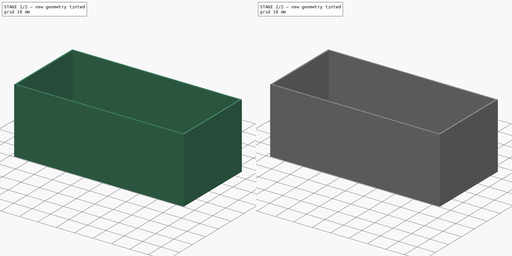
[diagram: build sequence overview — one tinted view per stage of 2, left to right]
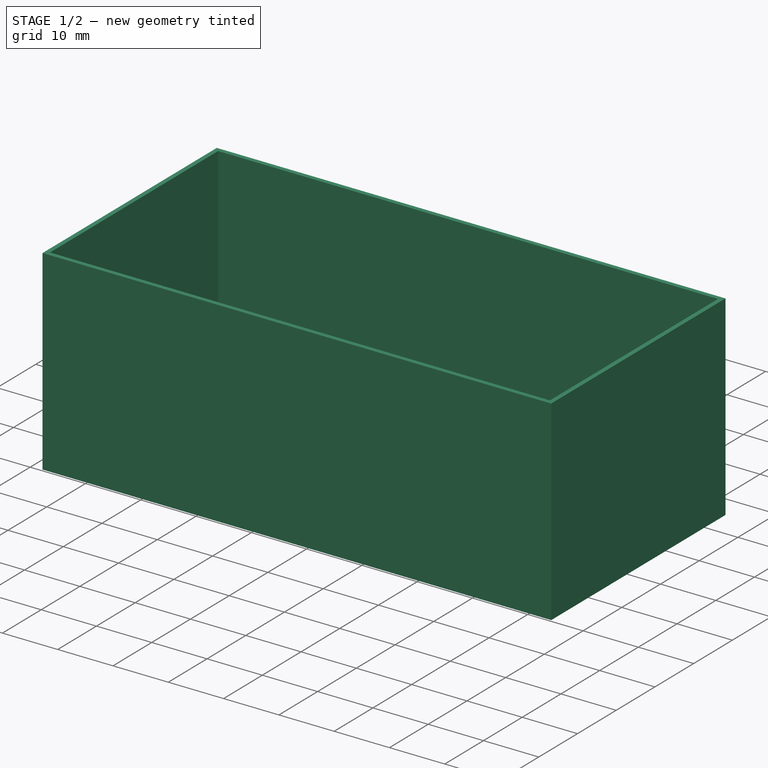
[diagram: stage 1 of 2 — iso view after this stage's code; geometry added in this stage tinted green]
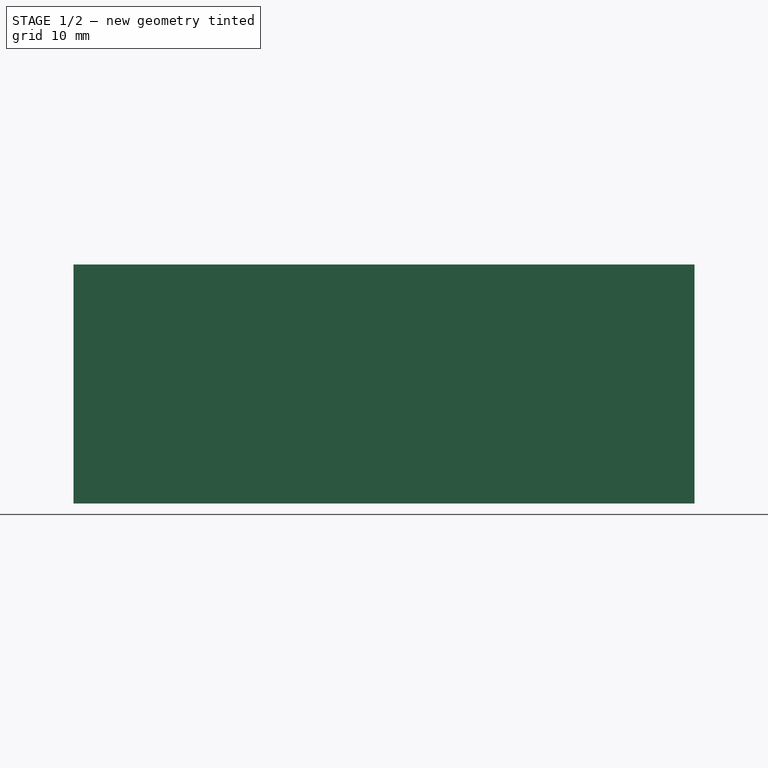
[diagram: stage 1 of 2 — front view after this stage's code; geometry added in this stage tinted green]
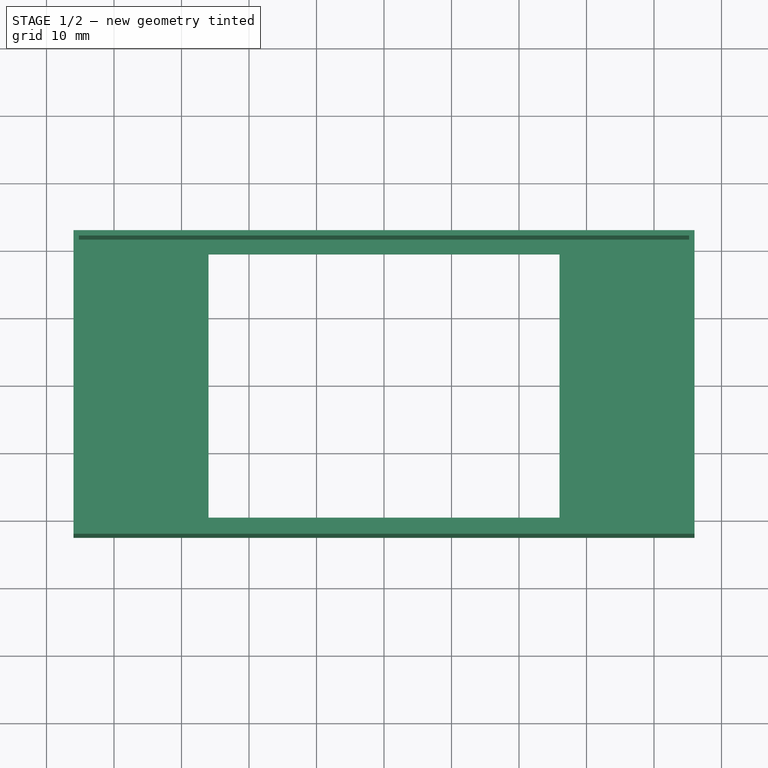
[diagram: stage 1 of 2 — top view after this stage's code; geometry added in this stage tinted green]
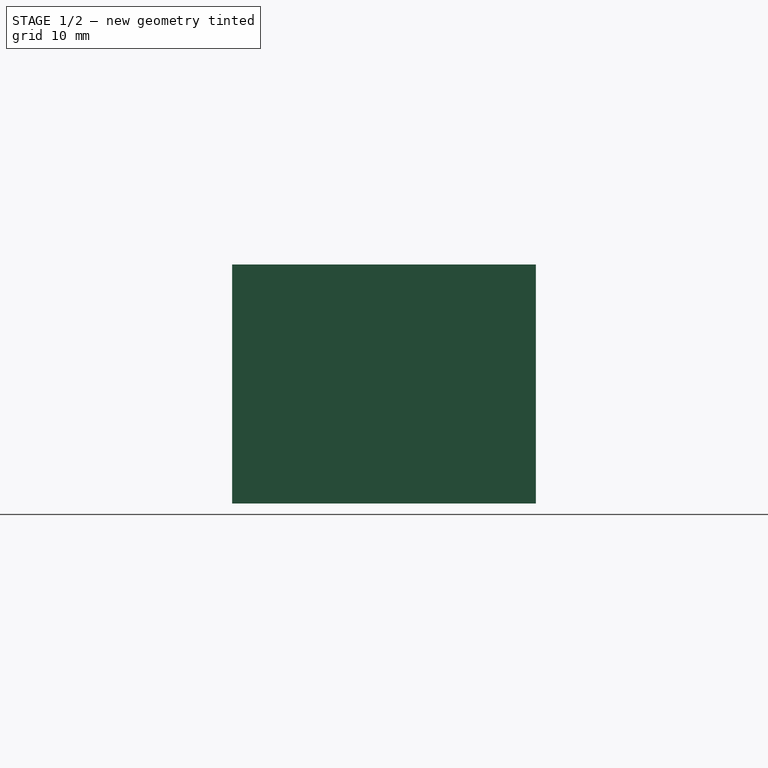
[diagram: stage 1 of 2 — right view after this stage's code; geometry added in this stage tinted green]
FCSTD DOCUMENT  (FreeCAD 0.21R33668 +26 (Git))
Label: Hauptgehäuse
License: All rights reserved
LicenseURL: http://en.wikipedia.org/wiki/All_rights_reserved
objects: Sketcher::SketchObject×4, PartDesign::Pad×4, PartDesign::Body×1
note: 13 computed .brp shape members not serialized (recipe doc carries the construction recipe); baked Part::Feature solids carry a one-line shape summary decoded from their .brp

FEATURE [Sketcher::SketchObject] Sketch
  FullyConstrained = true
  MapMode = 5
  Support = -> [XY_Plane]
  sketch-geometry (8):
    g0: LineSegment StartX=-26 StartY=-19.5 StartZ=0 EndX=26 EndY=-19.5 EndZ=0
    g1: LineSegment StartX=26 StartY=-19.5 StartZ=0 EndX=26 EndY=19.5 EndZ=0
    g2: LineSegment StartX=26 StartY=19.5 StartZ=0 EndX=-26 EndY=19.5 EndZ=0
    g3: LineSegment StartX=-26 StartY=19.5 StartZ=0 EndX=-26 EndY=-19.5 EndZ=0
    g4: LineSegment StartX=-46 StartY=-22.5 StartZ=0 EndX=46 EndY=-22.5 EndZ=0
    g5: LineSegment StartX=46 StartY=-22.5 StartZ=0 EndX=46 EndY=22.5 EndZ=0
    g6: LineSegment StartX=46 StartY=22.5 StartZ=0 EndX=-46 EndY=22.5 EndZ=0
    g7: LineSegment StartX=-46 StartY=22.5 StartZ=0 EndX=-46 EndY=-22.5 EndZ=0
  constraints (22):
    c: Coincident(g0,g1)
    c: Coincident(g1,g2)
    c: Coincident(g2,g3)
    c: Coincident(g3,g0)
    c: Horizontal(g0)
    c: Horizontal(g2)
    c: Vertical(g1)
    c: Vertical(g3)
    c: Symmetric(g0,g1,g-1)
    c: DistanceX(g2,g2) = 52
    c: DistanceY(g1,g1) = 39
    c: Coincident(g4,g5)
    c: Coincident(g5,g6)
    c: Coincident(g6,g7)
    c: Coincident(g7,g4)
    c: Horizontal(g4)
    c: Horizontal(g6)
    c: Vertical(g5)
    c: Vertical(g7)
    c: Symmetric(g4,g5,g-1)
    c: DistanceX(g6,g6) = 92
    c: DistanceY(g7,g7) = 45
FEATURE [Sketcher::SketchObject] Sketch001
  FullyConstrained = true
  MapMode = 5
  Support = -> [XY_Plane]
  sketch-geometry (8):
    g0: Circle CenterX=30.5 CenterY=18.25 CenterZ=0 NormalX=0 NormalY=0 NormalZ=1 AngleXU=0 Radius=3
    g1: Circle CenterX=30.5 CenterY=-18.25 CenterZ=0 NormalX=0 NormalY=0 NormalZ=1 AngleXU=0 Radius=3
    g2: Circle CenterX=-36.5 CenterY=18.25 CenterZ=0 NormalX=0 NormalY=0 NormalZ=1 AngleXU=0 Radius=3
    g3: Circle CenterX=-36.5 CenterY=-18.25 CenterZ=0 NormalX=0 NormalY=0 NormalZ=1 AngleXU=0 Radius=3
    g4: Circle CenterX=30.5 CenterY=18.25 CenterZ=0 NormalX=0 NormalY=0 NormalZ=1 AngleXU=0 Radius=1
    g5: Circle CenterX=30.5 CenterY=-18.25 CenterZ=0 NormalX=0 NormalY=0 NormalZ=1 AngleXU=0 Radius=1
    g6: Circle CenterX=-36.5 CenterY=18.25 CenterZ=0 NormalX=0 NormalY=0 NormalZ=1 AngleXU=0 Radius=1
    g7: Circle CenterX=-36.5 CenterY=-18.25 CenterZ=0 NormalX=0 NormalY=0 NormalZ=1 AngleXU=0 Radius=1
  constraints (18):
    c: DistanceX(g-1,g0) = 30.5
    c: Diameter(g0) = 6
    c: Equal(g0,g1) = 6
    c: Symmetric(g0,g1,g-1)
    c: DistanceY(g1,g0) = 36.5
    c: Equal(g0,g2) = 6
    c: Equal(g2,g3) = 6
    c: DistanceY(g3,g2) = 36.5
    c: DistanceX(g2,g0) = 67
    c: Symmetric(g3,g2,g-1)
    c: Coincident(g4,g0)
    c: Diameter(g4) = 2
    c: Equal(g4,g5) = 2
    c: Equal(g4,g6) = 2
    c: Equal(g6,g7) = 2
    c: Coincident(g5,g1)
    c: Coincident(g7,g3)
    c: Coincident(g6,g2)
FEATURE [PartDesign::Pad] Pad
  Direction = (0,0,1)
  Length = 0.4
  Length2 = 10
  Profile = -> Sketch
  ReferenceAxis = -> Sketch [N_Axis]
  Reversed = true
  Type = 0
FEATURE [Sketcher::SketchObject] Sketch003
  FullyConstrained = true
  MapMode = 5
  Support = -> [XY_Plane]
  sketch-geometry (8):
    g0: LineSegment StartX=-46 StartY=-22.5 StartZ=0 EndX=46 EndY=-22.5 EndZ=0
    g1: LineSegment StartX=46 StartY=-22.5 StartZ=0 EndX=46 EndY=22.5 EndZ=0
    g2: LineSegment StartX=46 StartY=22.5 StartZ=0 EndX=-46 EndY=22.5 EndZ=0
    g3: LineSegment StartX=-46 StartY=22.5 StartZ=0 EndX=-46 EndY=-22.5 EndZ=0
    g4: LineSegment StartX=-45.2 StartY=-21.7 StartZ=0 EndX=45.2 EndY=-21.7 EndZ=0
    g5: LineSegment StartX=45.2 StartY=-21.7 StartZ=0 EndX=45.2 EndY=21.7 EndZ=0
    g6: LineSegment StartX=45.2 StartY=21.7 StartZ=0 EndX=-45.2 EndY=21.7 EndZ=0
    g7: LineSegment StartX=-45.2 StartY=21.7 StartZ=0 EndX=-45.2 EndY=-21.7 EndZ=0
  constraints (22):
    c: Coincident(g0,g1)
    c: Coincident(g1,g2)
    c: Coincident(g2,g3)
    c: Coincident(g3,g0)
    c: Horizontal(g0)
    c: Horizontal(g2)
    c: Vertical(g1)
    c: Vertical(g3)
    c: DistanceX(g2,g2) = 92
    c: DistanceY(g1,g1) = 45
    c: Symmetric(g0,g1,g-1)
    c: Coincident(g4,g5)
    c: Coincident(g5,g6)
    c: Coincident(g6,g7)
    c: Coincident(g7,g4)
    c: Horizontal(g4)
    c: Horizontal(g6)
    c: Vertical(g5)
    c: Vertical(g7)
    c: Symmetric(g5,g4,g-1)
    c: DistanceX(g5,g1) = 0.8
    c: DistanceY(g5,g1) = 0.8
FEATURE [PartDesign::Pad] Pad001
  BaseFeature = -> Pad
  Direction = (0,0,1)
  Length = 35
  Length2 = 10
  Profile = -> Sketch003
  ReferenceAxis = -> Sketch003 [N_Axis]
  Type = 0
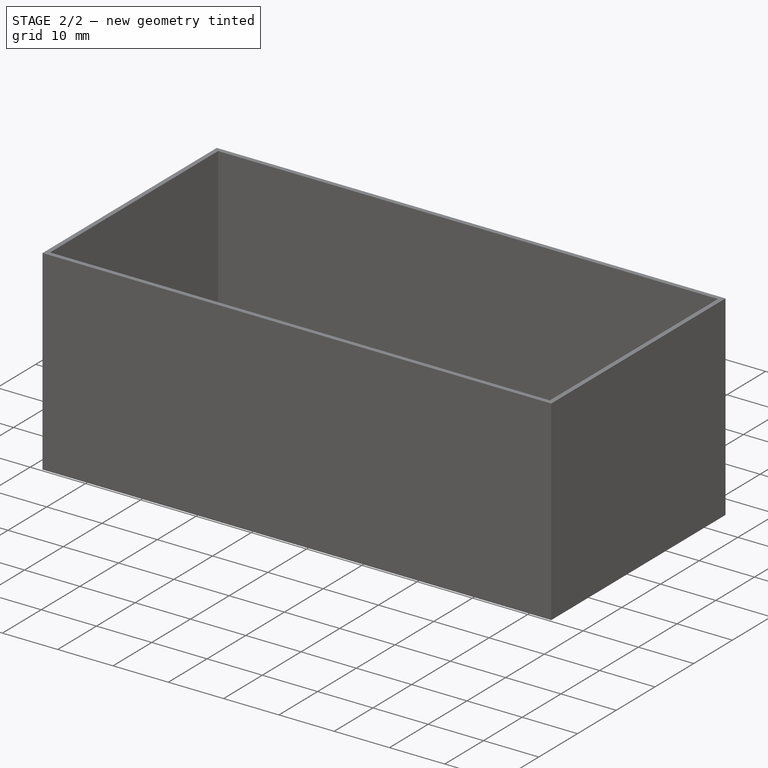
[diagram: stage 2 of 2 — iso view after this stage's code; geometry added in this stage tinted green]
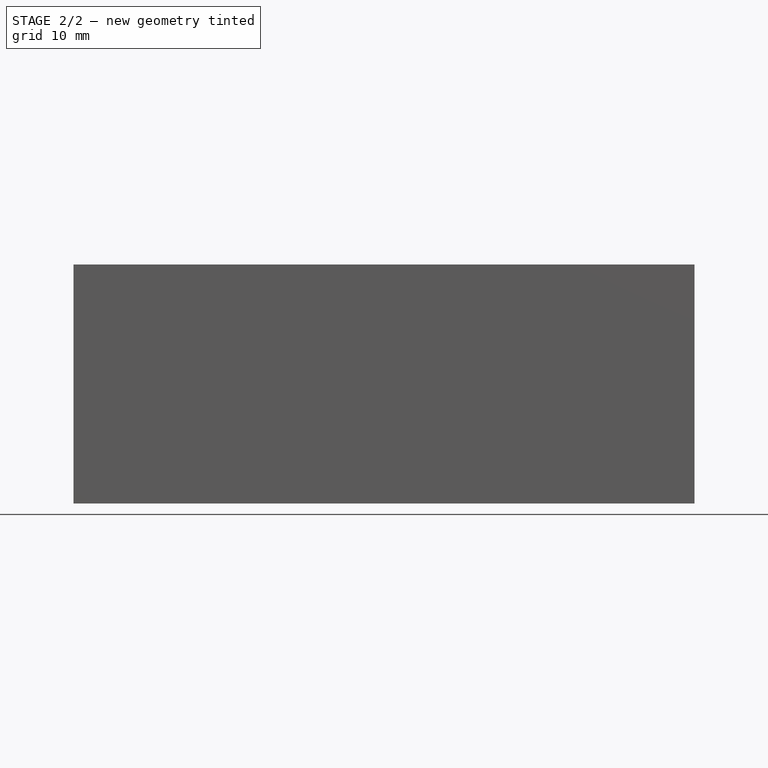
[diagram: stage 2 of 2 — front view after this stage's code; geometry added in this stage tinted green]
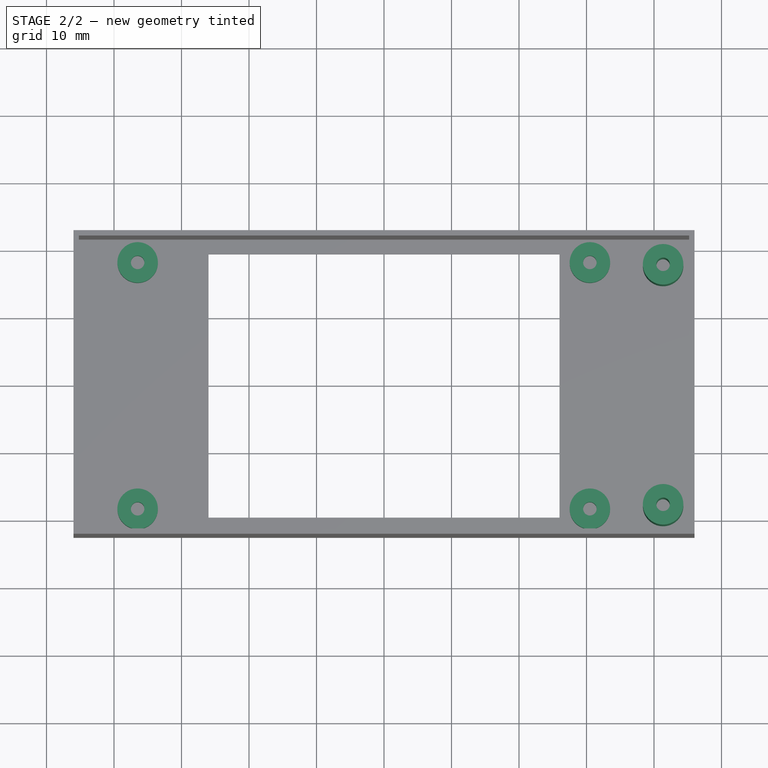
[diagram: stage 2 of 2 — top view after this stage's code; geometry added in this stage tinted green]
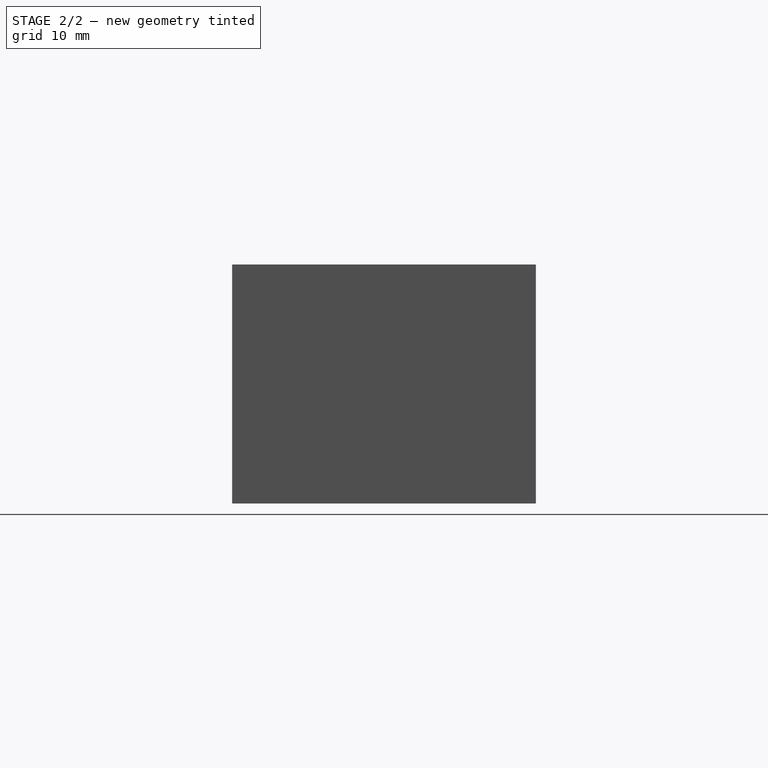
[diagram: stage 2 of 2 — right view after this stage's code; geometry added in this stage tinted green]
FEATURE [PartDesign::Pad] Pad002
  BaseFeature = -> Pad001
  Direction = (0,0,1)
  Length = 4
  Length2 = 10
  Profile = -> Sketch001
  ReferenceAxis = -> Sketch001 [N_Axis]
  Type = 0
FEATURE [Sketcher::SketchObject] Sketch004
  FullyConstrained = false
  MapMode = 5
  Support = -> [XY_Plane]
  sketch-geometry (4):
    g0: Circle CenterX=41.3488 CenterY=17.78 CenterZ=0 NormalX=0 NormalY=0 NormalZ=1 AngleXU=0 Radius=1
    g1: Circle CenterX=41.3488 CenterY=17.78 CenterZ=0 NormalX=0 NormalY=0 NormalZ=1 AngleXU=0 Radius=3
    g2: Circle CenterX=41.3488 CenterY=-17.78 CenterZ=0 NormalX=0 NormalY=0 NormalZ=1 AngleXU=0 Radius=1
    g3: Circle CenterX=41.3488 CenterY=-17.78 CenterZ=0 NormalX=0 NormalY=0 NormalZ=1 AngleXU=0 Radius=3
  constraints (8):
    c: Coincident(g1,g0)
    c: Diameter(g1) = 6
    c: Diameter(g0) = 2
    c: Coincident(g3,g2)
    c: Equal(g1,g3) = 6
    c: Equal(g0,g2) = 2
    c: Symmetric(g0,g2,g-1)
    c: DistanceY(g2,g0) = 35.56
FEATURE [PartDesign::Pad] Pad003
  BaseFeature = -> Pad002
  Direction = (0,0,1)
  Length = 15
  Length2 = 10
  Profile = -> Sketch004
  ReferenceAxis = -> Sketch004 [N_Axis]
  Type = 0
FEATURE [PartDesign::Body] Body
  Group = -> [Sketch,Sketch001,Pad,Sketch003,Pad001,Pad002,Sketch004,Pad003]
  Origin = -> Origin
  Tip = -> Pad003
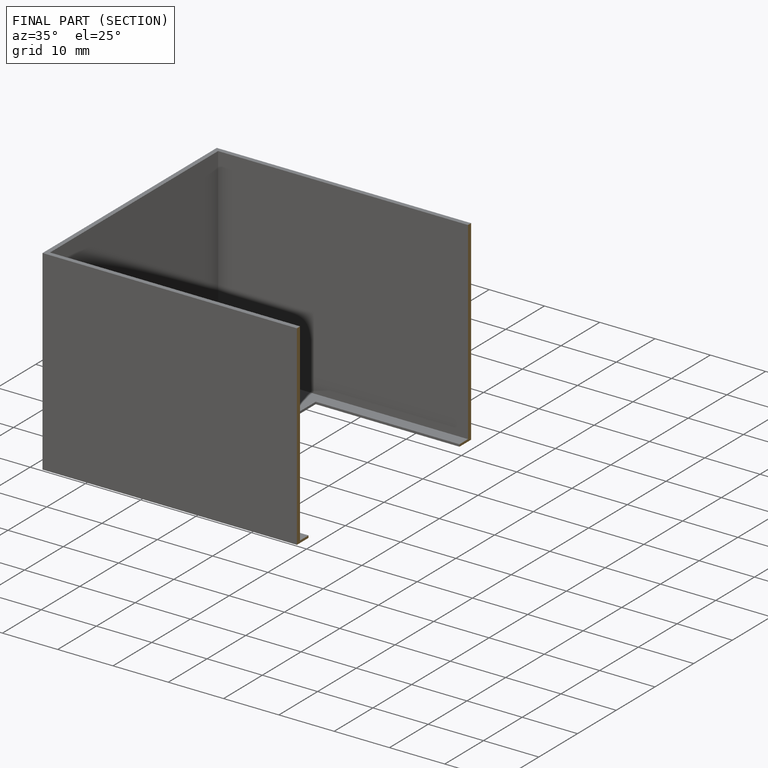
[diagram: finished part — half-section view (interior)]
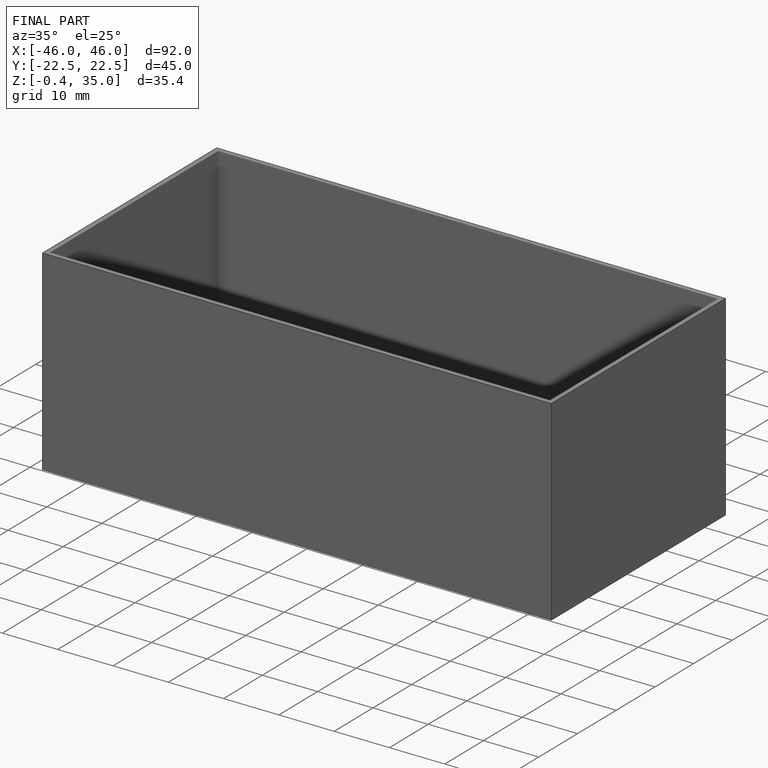
[diagram: finished part — iso view with bounding-box wireframe]
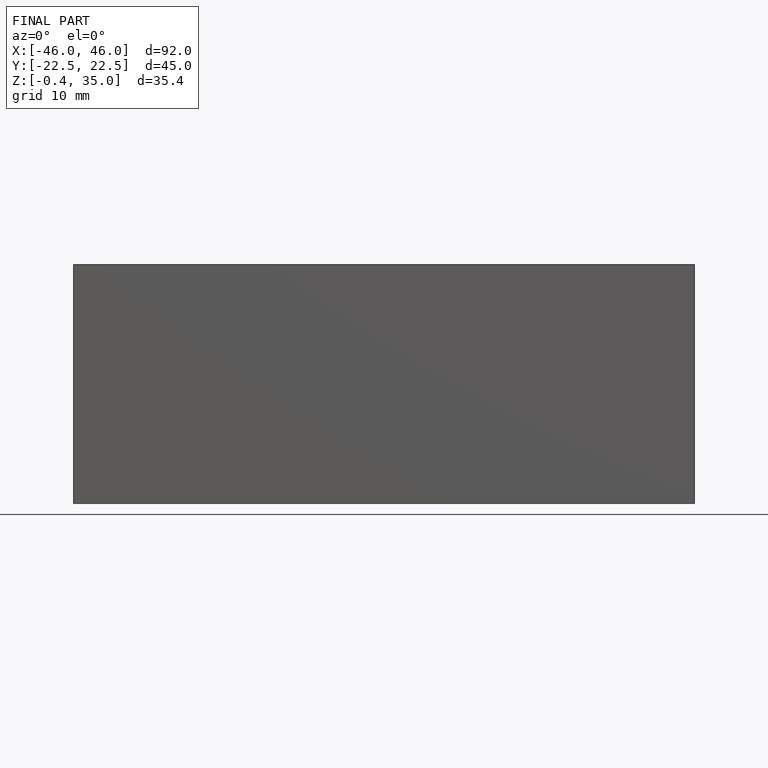
[diagram: finished part — front view with bounding-box wireframe]
